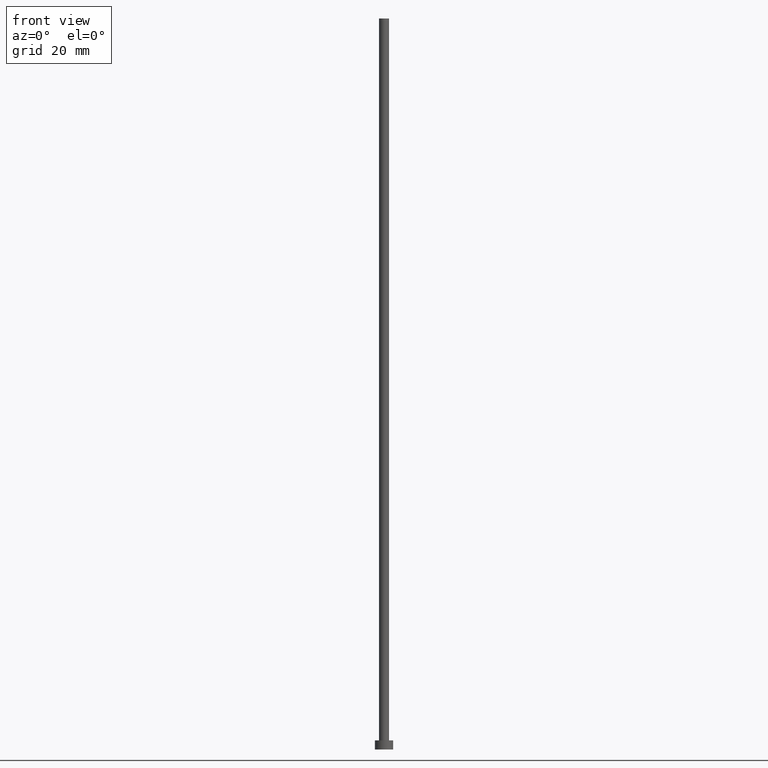
[diagram: clean part render]
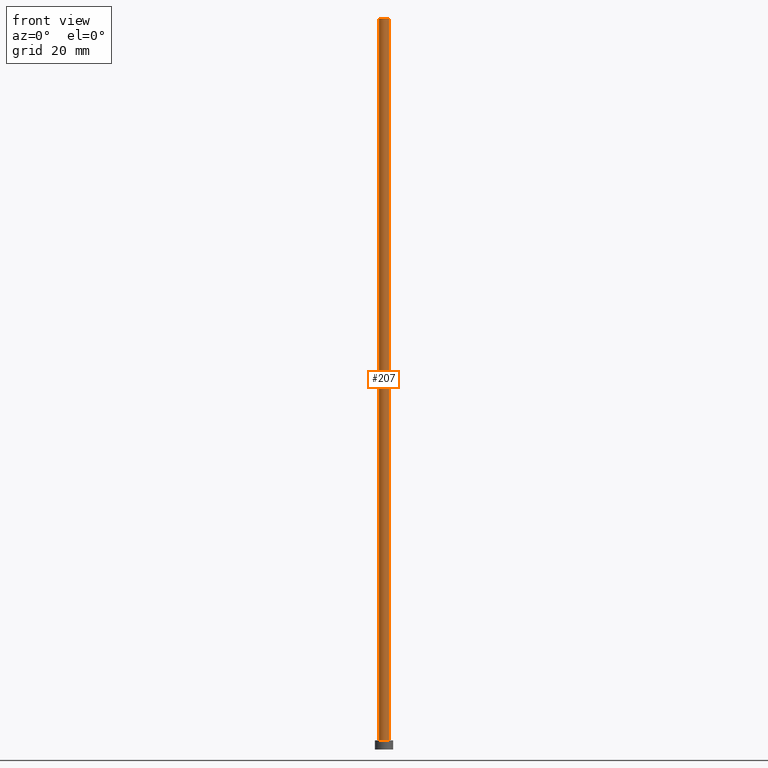
[diagram: same view with one face highlighted and labeled with its STEP entity id]
A machine part, front view. The second image highlights one B-rep face of the part: STEP entity #207.
In plain terms, the highlighted cylindrical surface (edge-blend (fillet) strip) has radius 1.1 mm, axis along (-0, -0, -1).
Its self-contained STEP definition (entity closure, byte-faithful):
#14 = ORIENTED_EDGE ( 'NONE', *, *, #65, .F. ) ;
#28 = CARTESIAN_POINT ( 'NONE',  ( 1.100000000000000089, 1.347111479062088503E-16, 160.0000000000000000 ) ) ;
#30 = CARTESIAN_POINT ( 'NONE',  ( -1.100000000000000089, 0.000000000000000000, 160.0000000000000000 ) ) ;
#39 = VERTEX_POINT ( 'NONE', #224 ) ;
#42 = VECTOR ( 'NONE', #240, 1000.000000000000000 ) ;
#50 = LINE ( 'NONE', #92, #42 ) ;
#64 = ORIENTED_EDGE ( 'NONE', *, *, #126, .T. ) ;
#65 = EDGE_CURVE ( 'NONE', #254, #215, #173, .T. ) ;
#71 = EDGE_CURVE ( 'NONE', #39, #253, #113, .T. ) ;
#76 = AXIS2_PLACEMENT_3D ( 'NONE', #201, #218, #77 ) ;
#77 = DIRECTION ( 'NONE',  ( 1.000000000000000000, 0.000000000000000000, 0.000000000000000000 ) ) ;
#81 = CARTESIAN_POINT ( 'NONE',  ( 1.100000000000000089, 1.347111479062088503E-16, 160.0000000000000000 ) ) ;
#92 = CARTESIAN_POINT ( 'NONE',  ( -1.100000000000000089, 0.000000000000000000, 160.0000000000000000 ) ) ;
#95 = VECTOR ( 'NONE', #181, 1000.000000000000000 ) ;
#102 = EDGE_LOOP ( 'NONE', ( #105, #14, #64, #175 ) ) ;
#105 = ORIENTED_EDGE ( 'NONE', *, *, #114, .F. ) ;
#113 = CIRCLE ( 'NONE', #76, 1.100000000000000089 ) ;
#114 = EDGE_CURVE ( 'NONE', #215, #253, #204, .T. ) ;
#126 = EDGE_CURVE ( 'NONE', #254, #39, #50, .T. ) ;
#128 = CARTESIAN_POINT ( 'NONE',  ( 0.000000000000000000, 0.000000000000000000, 160.0000000000000000 ) ) ;
#136 = AXIS2_PLACEMENT_3D ( 'NONE', #128, #238, #151 ) ;
#137 = CARTESIAN_POINT ( 'NONE',  ( 1.100000000000000089, 1.347111479062088503E-16, 2.000000000000000000 ) ) ;
#151 = DIRECTION ( 'NONE',  ( 1.000000000000000000, 0.000000000000000000, 0.000000000000000000 ) ) ;
#155 = CYLINDRICAL_SURFACE ( 'NONE', #165, 1.100000000000000089 ) ;
#165 = AXIS2_PLACEMENT_3D ( 'NONE', #208, #186, #206 ) ;
#173 = CIRCLE ( 'NONE', #136, 1.100000000000000089 ) ;
#175 = ORIENTED_EDGE ( 'NONE', *, *, #71, .T. ) ;
#181 = DIRECTION ( 'NONE',  ( -0.000000000000000000, -0.000000000000000000, -1.000000000000000000 ) ) ;
#186 = DIRECTION ( 'NONE',  ( -0.000000000000000000, -0.000000000000000000, -1.000000000000000000 ) ) ;
#201 = CARTESIAN_POINT ( 'NONE',  ( 0.000000000000000000, 0.000000000000000000, 2.000000000000000000 ) ) ;
#204 = LINE ( 'NONE', #28, #95 ) ;
#206 = DIRECTION ( 'NONE',  ( -1.000000000000000000, 0.000000000000000000, 0.000000000000000000 ) ) ;
#207 = ADVANCED_FACE ( 'NONE', ( #244 ), #155, .T. ) ;
#208 = CARTESIAN_POINT ( 'NONE',  ( 0.000000000000000000, 0.000000000000000000, 160.0000000000000000 ) ) ;
#215 = VERTEX_POINT ( 'NONE', #81 ) ;
#218 = DIRECTION ( 'NONE',  ( 0.000000000000000000, 0.000000000000000000, 1.000000000000000000 ) ) ;
#224 = CARTESIAN_POINT ( 'NONE',  ( -1.100000000000000089, 0.000000000000000000, 2.000000000000000000 ) ) ;
#238 = DIRECTION ( 'NONE',  ( 0.000000000000000000, 0.000000000000000000, 1.000000000000000000 ) ) ;
#240 = DIRECTION ( 'NONE',  ( -0.000000000000000000, -0.000000000000000000, -1.000000000000000000 ) ) ;
#244 = FACE_OUTER_BOUND ( 'NONE', #102, .T. ) ;
#253 = VERTEX_POINT ( 'NONE', #137 ) ;
#254 = VERTEX_POINT ( 'NONE', #30 ) ;